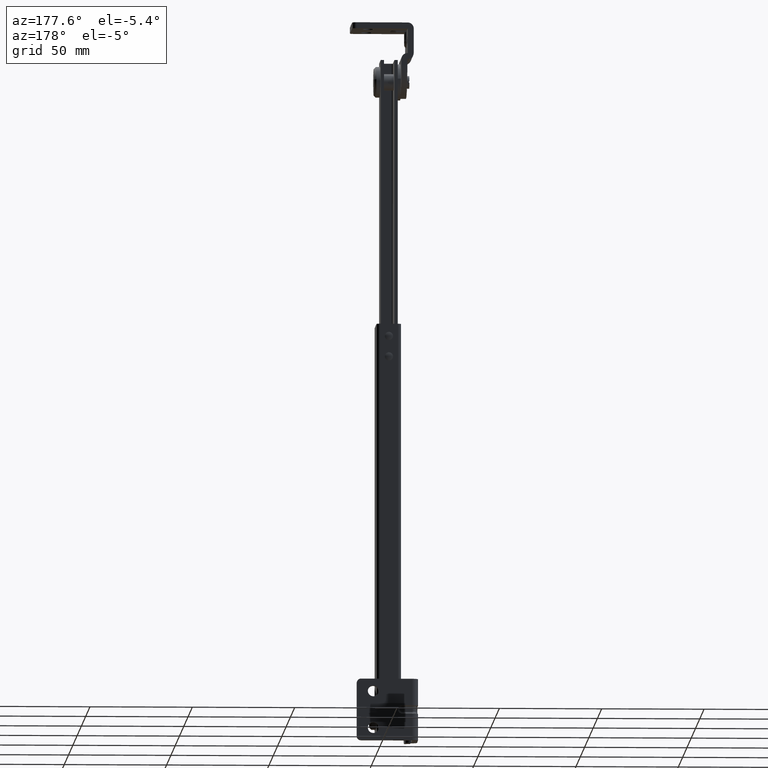
[diagram: clean part render]
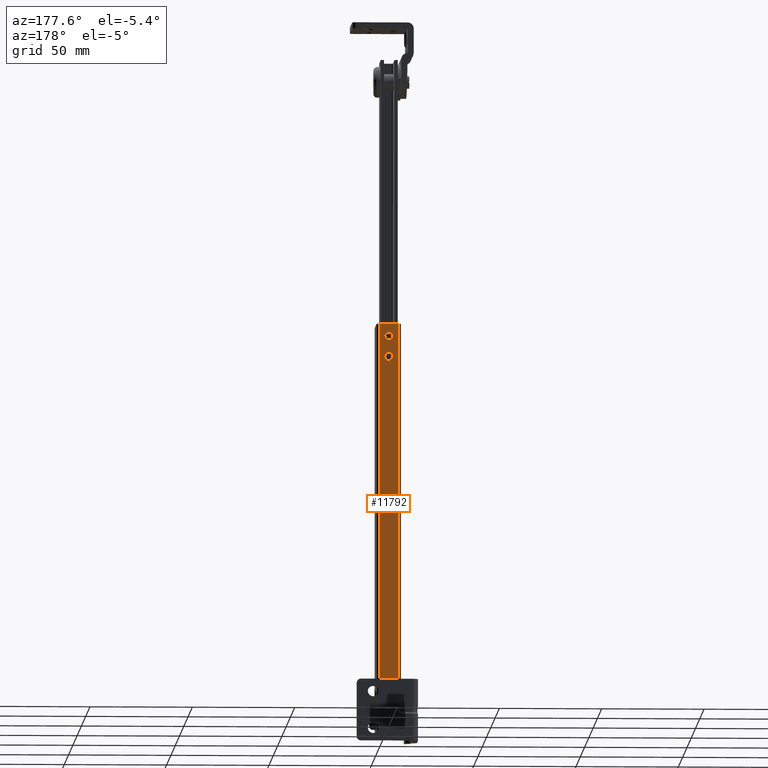
[diagram: same view with one face highlighted and labeled with its STEP entity id]
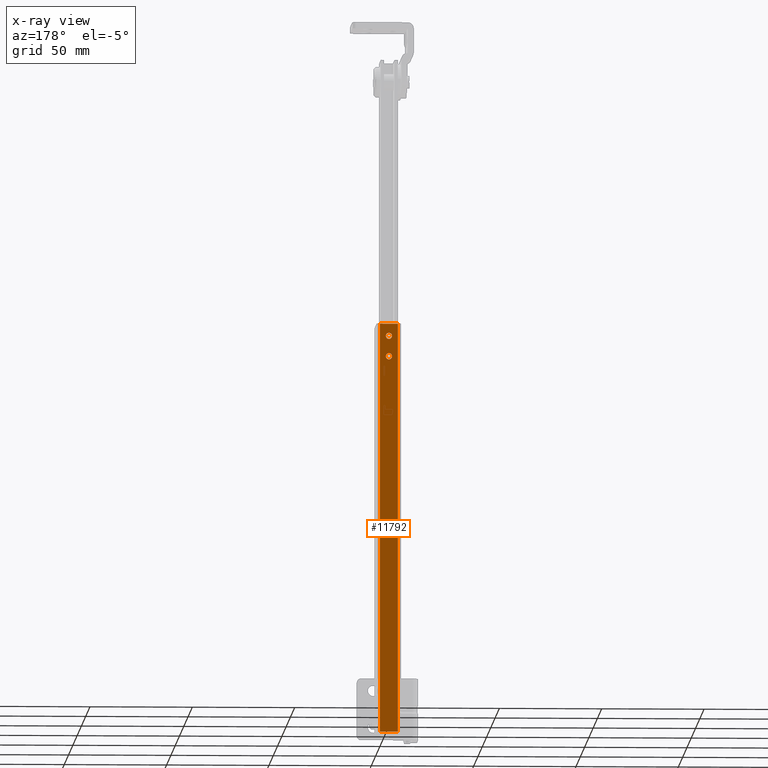
[diagram: x-ray of the same camera — body ghosted, the highlighted face saturated]
A machine part, auxiliary view. The second image highlights one B-rep face of the part: STEP entity #11792.
The next image is the same camera in x-ray: the body ghosted, the highlighted face saturated — about 0% of this face is hidden behind the body in this view.
In plain terms, the highlighted face is a freeform B-spline surface patch.
Its self-contained STEP definition (entity closure, byte-faithful):
#10700=CARTESIAN_POINT('',(-7.495375999980161,12.500000000000000,174.617688651463710));
#10701=VERTEX_POINT('',#10700);
#10707=CARTESIAN_POINT('',(-6.0,12.500000000000000,176.0));
#10708=VERTEX_POINT('',#10707);
#10709=CARTESIAN_POINT('',(-6.0,12.500000000000000,176.0));
#10710=CARTESIAN_POINT('',(-7.386585722843783,12.499999999999998,176.000000000000030));
#10711=CARTESIAN_POINT('',(-7.495375999980162,12.499999999999998,174.617688651463650));
#10719=(BOUNDED_CURVE()B_SPLINE_CURVE(2,(#10709,#10710,#10711),.UNSPECIFIED.,.F.,.U.)B_SPLINE_CURVE_WITH_KNOTS((3,3),(0.0,0.236331298827959),.UNSPECIFIED.)CURVE()GEOMETRIC_REPRESENTATION_ITEM()RATIONAL_B_SPLINE_CURVE((1.0,0.723120660719661,0.969723352405319))REPRESENTATION_ITEM(''));
#10720=EDGE_CURVE('',#10708,#10701,#10719,.T.);
#10722=CARTESIAN_POINT('',(-4.504624000019839,12.500000000000000,174.382311348536400));
#10723=VERTEX_POINT('',#10722);
#10724=CARTESIAN_POINT('',(-4.504624000019839,12.500000000000005,174.382311348536400));
#10725=CARTESIAN_POINT('',(-4.500000000000001,12.500000000000000,174.441064831580120));
#10726=CARTESIAN_POINT('',(-4.500000000000001,12.500000000000000,174.500000000000000));
#10727=CARTESIAN_POINT('',(-4.500000000000002,12.500000000000000,176.000000000000060));
#10728=CARTESIAN_POINT('',(-6.0,12.500000000000000,176.0));
#10736=(BOUNDED_CURVE()B_SPLINE_CURVE(2,(#10724,#10725,#10726,#10727,#10728),.UNSPECIFIED.,.F.,.U.)B_SPLINE_CURVE_WITH_KNOTS((3,2,3),(0.736331298827960,0.750000000000000,1.0),.UNSPECIFIED.)CURVE()GEOMETRIC_REPRESENTATION_ITEM()RATIONAL_B_SPLINE_CURVE((0.969723352405321,0.983986120466888,1.0,0.707106781186548,1.0))REPRESENTATION_ITEM(''));
#10737=EDGE_CURVE('',#10723,#10708,#10736,.T.);
#10813=CARTESIAN_POINT('',(-6.0,12.500000000000000,173.0));
#10814=VERTEX_POINT('',#10813);
#10815=CARTESIAN_POINT('',(-6.0,12.500000000000000,173.0));
#10816=CARTESIAN_POINT('',(-4.613414277156203,12.500000000000002,172.999999999999970));
#10817=CARTESIAN_POINT('',(-4.504624000019840,12.500000000000002,174.382311348536380));
#10825=(BOUNDED_CURVE()B_SPLINE_CURVE(2,(#10815,#10816,#10817),.UNSPECIFIED.,.F.,.U.)B_SPLINE_CURVE_WITH_KNOTS((3,3),(0.500000000000000,0.736331298827961),.UNSPECIFIED.)CURVE()GEOMETRIC_REPRESENTATION_ITEM()RATIONAL_B_SPLINE_CURVE((1.0,0.723120660719659,0.969723352405323))REPRESENTATION_ITEM(''));
#10826=EDGE_CURVE('',#10814,#10723,#10825,.T.);
#10828=CARTESIAN_POINT('',(-7.495375999980163,12.500000000000000,174.617688651463680));
#10829=CARTESIAN_POINT('',(-7.500000000000000,12.500000000000005,174.558935168419910));
#10830=CARTESIAN_POINT('',(-7.500000000000000,12.500000000000000,174.500000000000000));
#10831=CARTESIAN_POINT('',(-7.500000000000000,12.500000000000000,172.999999999999970));
#10832=CARTESIAN_POINT('',(-6.0,12.500000000000000,173.0));
#10840=(BOUNDED_CURVE()B_SPLINE_CURVE(2,(#10828,#10829,#10830,#10831,#10832),.UNSPECIFIED.,.F.,.U.)B_SPLINE_CURVE_WITH_KNOTS((3,2,3),(0.236331298827959,0.250000000000000,0.500000000000000),.UNSPECIFIED.)CURVE()GEOMETRIC_REPRESENTATION_ITEM()RATIONAL_B_SPLINE_CURVE((0.969723352405319,0.983986120466887,1.0,0.707106781186548,1.0))REPRESENTATION_ITEM(''));
#10841=EDGE_CURVE('',#10701,#10814,#10840,.T.);
#10882=CARTESIAN_POINT('',(-7.495375999980163,12.500000000000000,184.617688651463710));
#10883=VERTEX_POINT('',#10882);
#10889=CARTESIAN_POINT('',(-6.0,12.500000000000000,186.0));
#10890=VERTEX_POINT('',#10889);
#10891=CARTESIAN_POINT('',(-6.0,12.500000000000000,186.0));
#10892=CARTESIAN_POINT('',(-7.386585722843811,12.499999999999998,186.000000000000060));
#10893=CARTESIAN_POINT('',(-7.495375999980163,12.500000000000002,184.617688651463680));
#10901=(BOUNDED_CURVE()B_SPLINE_CURVE(2,(#10891,#10892,#10893),.UNSPECIFIED.,.F.,.U.)B_SPLINE_CURVE_WITH_KNOTS((3,3),(0.0,0.236331298827962),.UNSPECIFIED.)CURVE()GEOMETRIC_REPRESENTATION_ITEM()RATIONAL_B_SPLINE_CURVE((1.0,0.723120660719657,0.969723352405326))REPRESENTATION_ITEM(''));
#10902=EDGE_CURVE('',#10890,#10883,#10901,.T.);
#10904=CARTESIAN_POINT('',(-4.504624000019839,12.500000000000000,184.382311348536400));
#10905=VERTEX_POINT('',#10904);
#10906=CARTESIAN_POINT('',(-4.504624000019839,12.500000000000005,184.382311348536400));
#10907=CARTESIAN_POINT('',(-4.500000000000001,12.500000000000000,184.441064831580120));
#10908=CARTESIAN_POINT('',(-4.500000000000001,12.500000000000000,184.500000000000000));
#10909=CARTESIAN_POINT('',(-4.500000000000002,12.500000000000000,186.000000000000090));
#10910=CARTESIAN_POINT('',(-6.0,12.500000000000000,186.0));
#10918=(BOUNDED_CURVE()B_SPLINE_CURVE(2,(#10906,#10907,#10908,#10909,#10910),.UNSPECIFIED.,.F.,.U.)B_SPLINE_CURVE_WITH_KNOTS((3,2,3),(0.736331298827960,0.750000000000000,1.0),.UNSPECIFIED.)CURVE()GEOMETRIC_REPRESENTATION_ITEM()RATIONAL_B_SPLINE_CURVE((0.969723352405321,0.983986120466888,1.0,0.707106781186548,1.0))REPRESENTATION_ITEM(''));
#10919=EDGE_CURVE('',#10905,#10890,#10918,.T.);
#10995=CARTESIAN_POINT('',(-6.0,12.500000000000000,183.0));
#10996=VERTEX_POINT('',#10995);
#10997=CARTESIAN_POINT('',(-6.0,12.500000000000000,183.0));
#10998=CARTESIAN_POINT('',(-4.613414277156203,12.500000000000002,183.0));
#10999=CARTESIAN_POINT('',(-4.504624000019840,12.500000000000002,184.382311348536350));
#11007=(BOUNDED_CURVE()B_SPLINE_CURVE(2,(#10997,#10998,#10999),.UNSPECIFIED.,.F.,.U.)B_SPLINE_CURVE_WITH_KNOTS((3,3),(0.500000000000000,0.736331298827961),.UNSPECIFIED.)CURVE()GEOMETRIC_REPRESENTATION_ITEM()RATIONAL_B_SPLINE_CURVE((1.0,0.723120660719659,0.969723352405323))REPRESENTATION_ITEM(''));
#11008=EDGE_CURVE('',#10996,#10905,#11007,.T.);
#11010=CARTESIAN_POINT('',(-7.495375999980163,12.500000000000005,184.617688651463710));
#11011=CARTESIAN_POINT('',(-7.500000000000000,12.499999999999996,184.558935168419910));
#11012=CARTESIAN_POINT('',(-7.500000000000000,12.500000000000000,184.500000000000000));
#11013=CARTESIAN_POINT('',(-7.500000000000000,12.500000000000000,182.999999999999970));
#11014=CARTESIAN_POINT('',(-6.0,12.500000000000000,183.0));
#11022=(BOUNDED_CURVE()B_SPLINE_CURVE(2,(#11010,#11011,#11012,#11013,#11014),.UNSPECIFIED.,.F.,.U.)B_SPLINE_CURVE_WITH_KNOTS((3,2,3),(0.236331298827962,0.250000000000000,0.500000000000000),.UNSPECIFIED.)CURVE()GEOMETRIC_REPRESENTATION_ITEM()RATIONAL_B_SPLINE_CURVE((0.969723352405326,0.983986120466891,1.0,0.707106781186548,1.0))REPRESENTATION_ITEM(''));
#11023=EDGE_CURVE('',#10883,#10996,#11022,.T.);
#11401=CARTESIAN_POINT('',(-1.597476178661950,12.500000000000000,190.500000000000000));
#11402=VERTEX_POINT('',#11401);
#11416=CARTESIAN_POINT('',(-10.402523821338040,12.500000000000000,190.500000000000000));
#11417=VERTEX_POINT('',#11416);
#11418=CARTESIAN_POINT('',(-10.402523821338040,12.500000000000000,190.500000000000000));
#11419=CARTESIAN_POINT('',(-1.597476178661950,12.500000000000000,190.500000000000000));
#11420=QUASI_UNIFORM_CURVE('',1,(#11418,#11419),.UNSPECIFIED.,.F.,.U.);
#11421=EDGE_CURVE('',#11417,#11402,#11420,.T.);
#11531=CARTESIAN_POINT('',(-10.402523821338040,12.500000000000000,-9.500000000000000));
#11532=VERTEX_POINT('',#11531);
#11546=CARTESIAN_POINT('',(-1.597476178661950,12.500000000000000,-9.500000000000000));
#11547=VERTEX_POINT('',#11546);
#11548=CARTESIAN_POINT('',(-10.402523821338040,12.500000000000000,-9.500000000000000));
#11549=CARTESIAN_POINT('',(-1.597476178661950,12.500000000000000,-9.500000000000000));
#11550=QUASI_UNIFORM_CURVE('',1,(#11548,#11549),.UNSPECIFIED.,.F.,.U.);
#11551=EDGE_CURVE('',#11532,#11547,#11550,.T.);
#11671=CARTESIAN_POINT('',(-1.597476178661950,12.500000000000000,-9.500000000000000));
#11672=CARTESIAN_POINT('',(-1.597476178661950,12.500000000000000,190.500000000000000));
#11673=QUASI_UNIFORM_CURVE('',1,(#11671,#11672),.UNSPECIFIED.,.F.,.U.);
#11674=EDGE_CURVE('',#11547,#11402,#11673,.T.);
#11694=CARTESIAN_POINT('',(-10.402523821338040,12.500000000000000,-9.500000000000000));
#11695=CARTESIAN_POINT('',(-10.402523821338040,12.500000000000000,190.500000000000000));
#11696=QUASI_UNIFORM_CURVE('',1,(#11694,#11695),.UNSPECIFIED.,.F.,.U.);
#11697=EDGE_CURVE('',#11532,#11417,#11696,.T.);
#11769=CARTESIAN_POINT('',(-10.842336181990280,12.500000000000000,200.489999612361200));
#11770=CARTESIAN_POINT('',(-10.842336181990280,12.500000000000000,-19.490004976779211));
#11771=CARTESIAN_POINT('',(-1.157663818009710,12.500000000000000,200.489999612361200));
#11772=CARTESIAN_POINT('',(-1.157663818009710,12.500000000000000,-19.490004976779211));
#11773=B_SPLINE_SURFACE_WITH_KNOTS('',1,1,((#11769,#11771),(#11770,#11772)),.UNSPECIFIED.,.F.,.F.,.U.,(2,2),(2,2),(0.0,219.980004589140410),(0.0,9.684672363980573),.UNSPECIFIED.);
#11774=ORIENTED_EDGE('',*,*,#11421,.T.);
#11775=ORIENTED_EDGE('',*,*,#11674,.F.);
#11776=ORIENTED_EDGE('',*,*,#11551,.F.);
#11777=ORIENTED_EDGE('',*,*,#11697,.T.);
#11778=EDGE_LOOP('',(#11774,#11775,#11776,#11777));
#11779=FACE_OUTER_BOUND('',#11778,.T.);
#11780=ORIENTED_EDGE('',*,*,#11008,.T.);
#11781=ORIENTED_EDGE('',*,*,#10919,.T.);
#11782=ORIENTED_EDGE('',*,*,#10902,.T.);
#11783=ORIENTED_EDGE('',*,*,#11023,.T.);
#11784=EDGE_LOOP('',(#11780,#11781,#11782,#11783));
#11785=FACE_BOUND('',#11784,.T.);
#11786=ORIENTED_EDGE('',*,*,#10826,.T.);
#11787=ORIENTED_EDGE('',*,*,#10737,.T.);
#11788=ORIENTED_EDGE('',*,*,#10720,.T.);
#11789=ORIENTED_EDGE('',*,*,#10841,.T.);
#11790=EDGE_LOOP('',(#11786,#11787,#11788,#11789));
#11791=FACE_BOUND('',#11790,.T.);
#11792=ADVANCED_FACE('',(#11779,#11785,#11791),#11773,.F.);